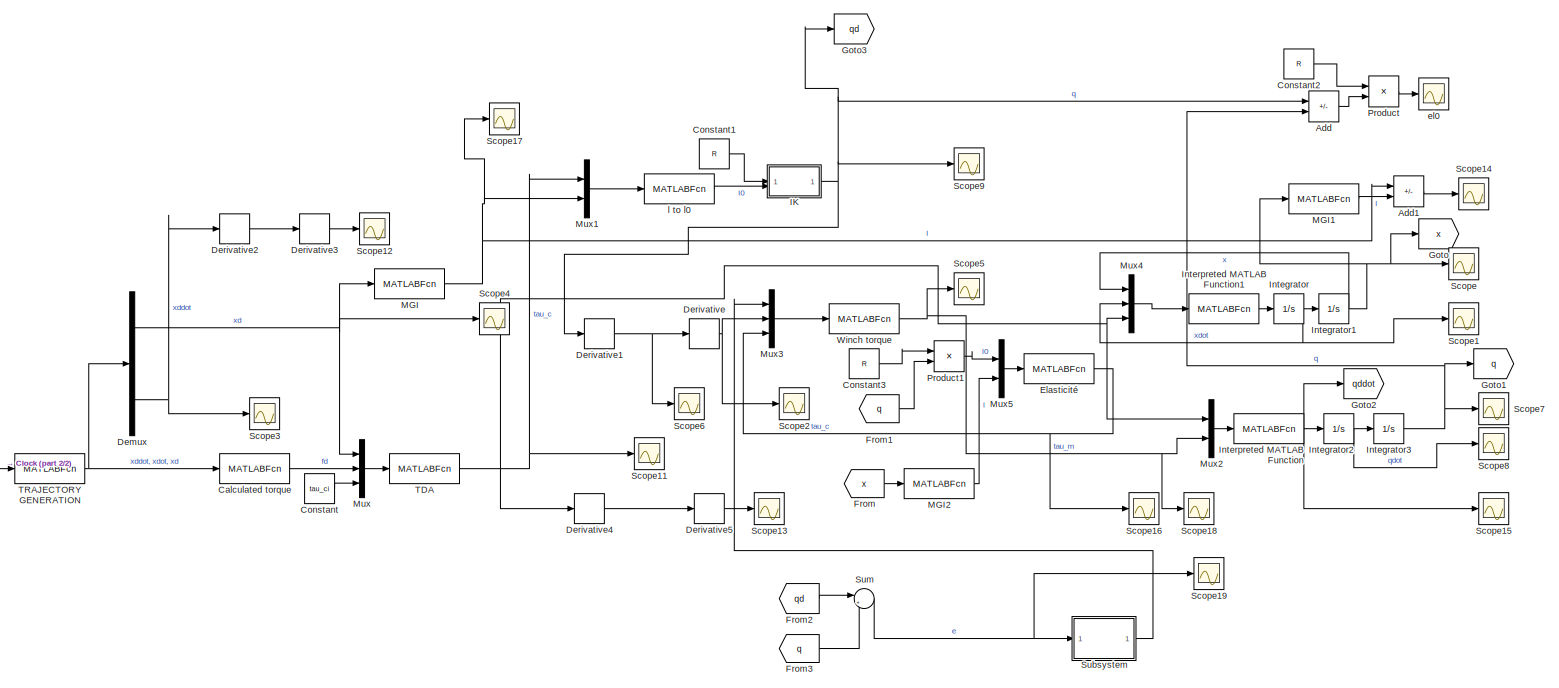
[diagram: root canvas - part 1/2, most of the canvas]
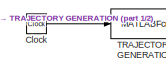
[diagram: root canvas - part 2/2, bottom left region]
MODEL slx_695d1d3f69a7
KIND model
CONFIG AbsTol = auto
CONFIG EnableMultiTasking = off
CONFIG FixedStep = 0.001
CONFIG MaxStep = auto
CONFIG MinStep = auto
CONFIG RelTol = 1e-3
CONFIG SampleTimeConstraint = Unconstrained
CONFIG SolverName = FixedStepAuto
CONFIG StartTime = 0.0
CONFIG StopTime = 10
BLOCK [Sum] Add
  IconShape = rectangular
  Inputs = +-
BLOCK [Sum] Add1
  IconShape = rectangular
  Inputs = +-
BLOCK [MATLABFcn] Calculated torque
  MATLABFcn = calculated_torque
  Output1D = off
BLOCK [Clock] Clock
BLOCK [Constant] Constant
  Value = tau_ci
BLOCK [Constant] Constant1
  Value = R
BLOCK [Constant] Constant2
  Value = R
BLOCK [Constant] Constant3
  Value = R
BLOCK [Demux] Demux
  Outputs = 3
BLOCK [Derivative] Derivative
BLOCK [Derivative] Derivative1
BLOCK [Derivative] Derivative2
BLOCK [Derivative] Derivative3
BLOCK [Derivative] Derivative4
BLOCK [Derivative] Derivative5
BLOCK [MATLABFcn] Elasticité
  MATLABFcn = Elasticity
  Output1D = off
  OutputDimensions = 8
  OutputSignalType = real
BLOCK [From] From
  GotoTag = x
BLOCK [From] From1
  GotoTag = q
BLOCK [From] From2
  GotoTag = qd
BLOCK [From] From3
  GotoTag = q
BLOCK [Goto] Goto
  GotoTag = x
BLOCK [Goto] Goto1
  GotoTag = q
BLOCK [Goto] Goto2
  GotoTag = qddot
BLOCK [Goto] Goto3
  GotoTag = qd
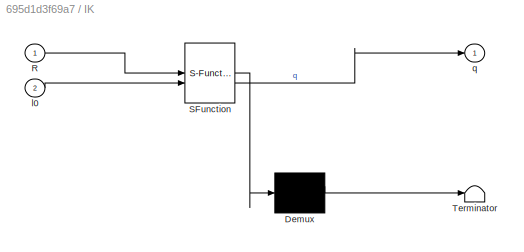
BLOCK [SubSystem] IK
  ErrorFcn = Stateflow.Translate.translate
  PermitHierarchicalResolution = ExplicitOnly
  SFBlockType = MATLAB Function
  TreatAsAtomicUnit = on
BLOCK [Demux] IK/ Demux 
  Outputs = 1
BLOCK [S-Function] IK/ SFunction 
  EnableBusSupport = on
  FunctionName = sf_sfun
  PortCounts = [2 2]
  SFcnIsStateOwnerBlock = off
  SFunctionDeploymentMode = off
  Tag = Stateflow S-Function 14
BLOCK [Terminator] IK/ Terminator 
BLOCK [Inport] IK/R
BLOCK [Inport] IK/l0
  Port = 2
BLOCK [Outport] IK/q
BLOCK [Integrator] Integrator
  InitialCondition = zeros(6,1)
BLOCK [Integrator] Integrator1
  InitialCondition = Xi
BLOCK [Integrator] Integrator2
  InitialCondition = zeros(8,1)
BLOCK [Integrator] Integrator3
  InitialCondition = qi
BLOCK [MATLABFcn] Interpreted MATLAB Function
  MATLABFcn = dynM_Winch
  Output1D = off
  OutputDimensions = 8
BLOCK [MATLABFcn] Interpreted MATLAB Function1
  MATLABFcn = DynModel
  Output1D = off
BLOCK [MATLABFcn] MGI
  MATLABFcn = MGI_Fconstrained
BLOCK [MATLABFcn] MGI1
  MATLABFcn = MGI_Fconstrained
BLOCK [MATLABFcn] MGI2
  MATLABFcn = MGI_Fconstrained
BLOCK [Mux] Mux
  DisplayOption = bar
  Inputs = 3
BLOCK [Mux] Mux1
  DisplayOption = bar
  Inputs = 2
BLOCK [Mux] Mux2
  DisplayOption = bar
  Inputs = 2
BLOCK [Mux] Mux3
  DisplayOption = bar
  Inputs = 3
BLOCK [Mux] Mux4
  DisplayOption = bar
  Inputs = 3
BLOCK [Mux] Mux5
  DisplayOption = bar
  Inputs = 2
BLOCK [Product] Product
  Multiplication = Matrix(*)
BLOCK [Product] Product1
  Multiplication = Matrix(*)
BLOCK [Scope] Scope
  Floating = off
  NumInputPorts = 1
  ScopeSpecificationString = Simulink.scopes.TimeScopeBlockCfg('CurrentConfiguration', extmgr.ConfigurationSet(extmgr.Configuration('Core','General UI',true),extmgr.Configuration('Core','Source UI',true),extmgr.Configuration('Sources','WiredSimulink',true,'DataLoggingVariableName','ScopeData5'),extmgr.Configuration('Visuals','Time Domain',true,'SerializedDisplays',{struct('MinYLimReal','-0.275','MaxYLimReal','2.475','YLabelRe...<+1575ch>
BLOCK [Scope] Scope1
  Floating = off
  NumInputPorts = 1
  ScopeSpecificationString = Simulink.scopes.TimeScopeBlockCfg('CurrentConfiguration', extmgr.ConfigurationSet(extmgr.Configuration('Core','General UI',true),extmgr.Configuration('Core','Source UI',true),extmgr.Configuration('Sources','WiredSimulink',true,'DataLoggingVariableName','ScopeData6'),extmgr.Configuration('Visuals','Time Domain',true,'SerializedDisplays',{struct('MinYLimReal','-138.7346','MaxYLimReal','89.27428','YL...<+1504ch>
BLOCK [Scope] Scope11
  Floating = off
  NumInputPorts = 1
  ScopeSpecificationString = Simulink.scopes.TimeScopeBlockCfg('CurrentConfiguration', extmgr.ConfigurationSet(extmgr.Configuration('Core','General UI',true,'FigureColor',[1 1 1]),extmgr.Configuration('Core','Source UI',true),extmgr.Configuration('Sources','WiredSimulink',true,'DataLoggingVariableName','ScopeData1'),extmgr.Configuration('Visuals','Time Domain',true,'SerializedDisplays',{struct('MinYLimReal','-471.21834','MaxY...<+1505ch>
BLOCK [Scope] Scope12
  Floating = off
  NumInputPorts = 1
  ScopeSpecificationString = Simulink.scopes.TimeScopeBlockCfg('CurrentConfiguration', extmgr.ConfigurationSet(extmgr.Configuration('Core','General UI',true),extmgr.Configuration('Core','Source UI',true),extmgr.Configuration('Sources','WiredSimulink',true,'DataLoggingVariableName','ScopeData2'),extmgr.Configuration('Visuals','Time Domain',true,'SerializedDisplays',{struct('MinYLimReal','-0.02382','MaxYLimReal','0.03007','YLab...<+1538ch>
BLOCK [Scope] Scope13
  Floating = off
  NumInputPorts = 1
  ScopeSpecificationString = Simulink.scopes.TimeScopeBlockCfg('CurrentConfiguration', extmgr.ConfigurationSet(extmgr.Configuration('Core','General UI',true),extmgr.Configuration('Core','Source UI',true),extmgr.Configuration('Sources','WiredSimulink',true,'DataLoggingVariableName','ScopeData3'),extmgr.Configuration('Visuals','Time Domain',true,'SerializedDisplays',{struct('MinYLimReal','-11528.86641','MaxYLimReal','20866.8399...<+1600ch>
BLOCK [Scope] Scope14
  Floating = off
  NumInputPorts = 1
  ScopeSpecificationString = Simulink.scopes.TimeScopeBlockCfg('CurrentConfiguration', extmgr.ConfigurationSet(extmgr.Configuration('Core','General UI',true),extmgr.Configuration('Core','Source UI',true),extmgr.Configuration('Sources','WiredSimulink',true,'DataLoggingVariableName','ScopeData4'),extmgr.Configuration('Visuals','Time Domain',true,'SerializedDisplays',{struct('MinYLimReal','-0.69404','MaxYLimReal','0.62303','YLab...<+1552ch>
BLOCK [Scope] Scope15
  Floating = off
  NumInputPorts = 1
  ScopeSpecificationString = Simulink.scopes.TimeScopeBlockCfg('CurrentConfiguration', extmgr.ConfigurationSet(extmgr.Configuration('Core','General UI',true),extmgr.Configuration('Core','Source UI',true),extmgr.Configuration('Sources','WiredSimulink',true,'DataLoggingVariableName','ScopeData15'),extmgr.Configuration('Visuals','Time Domain',true,'SerializedDisplays',{struct('MinYLimReal','-1291.85067','MaxYLimReal','1097.08769...<+1752ch>
BLOCK [Scope] Scope16
  Floating = off
  NumInputPorts = 1
  ScopeSpecificationString = Simulink.scopes.TimeScopeBlockCfg('CurrentConfiguration', extmgr.ConfigurationSet(extmgr.Configuration('Core','General UI',true),extmgr.Configuration('Core','Source UI',true),extmgr.Configuration('Sources','WiredSimulink',true,'DataLoggingVariableName','ScopeData1'),extmgr.Configuration('Visuals','Time Domain',true,'SerializedDisplays',{struct('MinYLimReal','28.74208','MaxYLimReal','216.79369','YL...<+1567ch>
BLOCK [Scope] Scope17
  Floating = off
  NumInputPorts = 1
  ScopeSpecificationString = Simulink.scopes.TimeScopeBlockCfg('CurrentConfiguration', extmgr.ConfigurationSet(extmgr.Configuration('Core','General UI',true),extmgr.Configuration('Core','Source UI',true),extmgr.Configuration('Sources','WiredSimulink',true,'DataLoggingVariableName','ScopeData2'),extmgr.Configuration('Visuals','Time Domain',true,'SerializedDisplays',{struct('MinYLimReal','4.1011','MaxYLimReal','4.48238','YLabel...<+1480ch>
BLOCK [Scope] Scope18
  Floating = off
  NumInputPorts = 1
  ScopeSpecificationString = Simulink.scopes.TimeScopeBlockCfg('CurrentConfiguration', extmgr.ConfigurationSet(extmgr.Configuration('Core','General UI',true),extmgr.Configuration('Core','Source UI',true),extmgr.Configuration('Sources','WiredSimulink',true,'DataLoggingVariableName','ScopeData3'),extmgr.Configuration('Visuals','Time Domain',true,'SerializedDisplays',{struct('MinYLimReal','0.11848','MaxYLimReal','0.53409','YLabe...<+1547ch>
BLOCK [Scope] Scope19
  Floating = off
  NumInputPorts = 1
  ScopeSpecificationString = Simulink.scopes.TimeScopeBlockCfg('CurrentConfiguration', extmgr.ConfigurationSet(extmgr.Configuration('Core','General UI',true),extmgr.Configuration('Core','Source UI',true),extmgr.Configuration('Sources','WiredSimulink',true,'DataLoggingVariableName','ScopeData4'),extmgr.Configuration('Visuals','Time Domain',true,'SerializedDisplays',{struct('MinYLimReal','-77608.57274','MaxYLimReal','64056.7117...<+1639ch>
BLOCK [Scope] Scope2
  Floating = off
  NumInputPorts = 1
  ScopeSpecificationString = Simulink.scopes.TimeScopeBlockCfg('CurrentConfiguration', extmgr.ConfigurationSet(extmgr.Configuration('Core','General UI',true),extmgr.Configuration('Core','Source UI',true),extmgr.Configuration('Sources','WiredSimulink',true,'DataLoggingVariableName','ScopeData8'),extmgr.Configuration('Visuals','Time Domain',true,'SerializedDisplays',{struct('MinYLimReal','-0.00338','MaxYLimReal','0.00257','YLab...<+1455ch>
BLOCK [Scope] Scope3
  Floating = off
  NumInputPorts = 1
  ScopeSpecificationString = Simulink.scopes.TimeScopeBlockCfg('CurrentConfiguration', extmgr.ConfigurationSet(extmgr.Configuration('Core','General UI',true),extmgr.Configuration('Core','Source UI',true),extmgr.Configuration('Sources','WiredSimulink',true,'DataLoggingVariableName','ScopeData9'),extmgr.Configuration('Visuals','Time Domain',true,'SerializedDisplays',{struct('MinYLimReal','-0.082','MaxYLimReal','0.082','YLabelRe...<+1486ch>
BLOCK [Scope] Scope4
  Floating = off
  NumInputPorts = 1
  ScopeSpecificationString = Simulink.scopes.TimeScopeBlockCfg('CurrentConfiguration', extmgr.ConfigurationSet(extmgr.Configuration('Core','General UI',true),extmgr.Configuration('Core','Source UI',true),extmgr.Configuration('Sources','WiredSimulink',true,'DataLoggingVariableName','ScopeData10'),extmgr.Configuration('Visuals','Time Domain',true,'SerializedDisplays',{struct('MinYLimReal','-0.3125','MaxYLimReal','2.8125','YLabe...<+1475ch>
BLOCK [Scope] Scope5
  Floating = off
  NumInputPorts = 1
  ScopeSpecificationString = Simulink.scopes.TimeScopeBlockCfg('CurrentConfiguration', extmgr.ConfigurationSet(extmgr.Configuration('Core','General UI',true),extmgr.Configuration('Core','Source UI',true),extmgr.Configuration('Sources','WiredSimulink',true,'DataLoggingVariableName','ScopeData11'),extmgr.Configuration('Visuals','Time Domain',true,'SerializedDisplays',{struct('MinYLimReal','0.11848','MaxYLimReal','0.53409','YLab...<+1548ch>
BLOCK [Scope] Scope6
  Floating = off
  NumInputPorts = 1
  ScopeSpecificationString = Simulink.scopes.TimeScopeBlockCfg('CurrentConfiguration', extmgr.ConfigurationSet(extmgr.Configuration('Core','General UI',true),extmgr.Configuration('Core','Source UI',true),extmgr.Configuration('Sources','WiredSimulink',true,'DataLoggingVariableName','ScopeData12'),extmgr.Configuration('Visuals','Time Domain',true,'SerializedDisplays',{struct('MinYLimReal','-15.80108','MaxYLimReal','6.36126','YL...<+1575ch>
BLOCK [Scope] Scope7
  Floating = off
  NumInputPorts = 1
  ScopeSpecificationString = Simulink.scopes.TimeScopeBlockCfg('CurrentConfiguration', extmgr.ConfigurationSet(extmgr.Configuration('Core','General UI',true),extmgr.Configuration('Core','Source UI',true),extmgr.Configuration('Sources','WiredSimulink',true,'DataLoggingVariableName','ScopeData13'),extmgr.Configuration('Visuals','Time Domain',true,'SerializedDisplays',{struct('MinYLimReal','1339.33893','MaxYLimReal','1378.689','...<+1507ch>
BLOCK [Scope] Scope8
  Floating = off
  NumInputPorts = 1
  ScopeSpecificationString = Simulink.scopes.TimeScopeBlockCfg('CurrentConfiguration', extmgr.ConfigurationSet(extmgr.Configuration('Core','General UI',true),extmgr.Configuration('Core','Source UI',true),extmgr.Configuration('Sources','WiredSimulink',true,'DataLoggingVariableName','ScopeData14'),extmgr.Configuration('Visuals','Time Domain',true,'SerializedDisplays',{struct('MinYLimReal','-113.76228','MaxYLimReal','12.64025','...<+1558ch>
BLOCK [Scope] Scope9
  Floating = off
  NumInputPorts = 1
  ScopeSpecificationString = Simulink.scopes.TimeScopeBlockCfg('CurrentConfiguration', extmgr.ConfigurationSet(extmgr.Configuration('Core','General UI',true),extmgr.Configuration('Core','Source UI',true),extmgr.Configuration('Sources','WiredSimulink',true),extmgr.Configuration('Visuals','Time Domain',true,'SerializedDisplays',{struct('MinYLimReal','1212.38623','MaxYLimReal','1495.35112','YLabelReal','','MinYLimMag','1212.3862...<+1469ch>
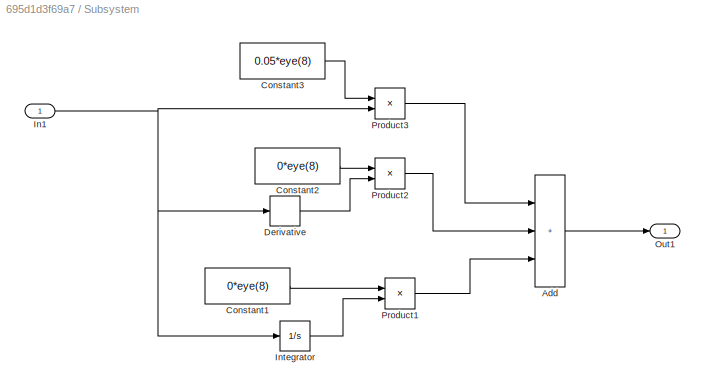
BLOCK [SubSystem] Subsystem
BLOCK [Sum] Subsystem/Add
  IconShape = rectangular
  Inputs = +++
BLOCK [Constant] Subsystem/Constant1
  Value = 0*eye(8)
BLOCK [Constant] Subsystem/Constant2
  Value = 0*eye(8)
BLOCK [Constant] Subsystem/Constant3
  Value = 0.05*eye(8)
BLOCK [Derivative] Subsystem/Derivative
BLOCK [Inport] Subsystem/In1
BLOCK [Integrator] Subsystem/Integrator
BLOCK [Outport] Subsystem/Out1
BLOCK [Product] Subsystem/Product1
  Multiplication = Matrix(*)
BLOCK [Product] Subsystem/Product2
  Multiplication = Matrix(*)
BLOCK [Product] Subsystem/Product3
  Multiplication = Matrix(*)
BLOCK [Sum] Sum
  Inputs = |+-
BLOCK [MATLABFcn] TDA
  MATLABFcn = TDA
  Output1D = off
  OutputDimensions = 8
BLOCK [MATLABFcn] TRAJECTORY GENERATION
  MATLABFcn = Trajectory_Generation
  Output1D = off
BLOCK [MATLABFcn] Winch torque
  MATLABFcn = Winch_torque
  Output1D = off
  OutputDimensions = 8
  OutputSignalType = real
BLOCK [Scope] el0
  Floating = off
  NumInputPorts = 1
  ScopeSpecificationString = Simulink.scopes.TimeScopeBlockCfg('CurrentConfiguration', extmgr.ConfigurationSet(extmgr.Configuration('Core','General UI',true),extmgr.Configuration('Core','Source UI',true),extmgr.Configuration('Sources','WiredSimulink',true,'DataLoggingVariableName','ScopeData7'),extmgr.Configuration('Visuals','Time Domain',true,'SerializedDisplays',{struct('MinYLimReal','-0.11582','MaxYLimReal','0.137','YLabel...<+1568ch>
BLOCK [MATLABFcn] l to l0
  MATLABFcn = l_to_l0
  Output1D = off
  OutputDimensions = 8
  OutputSignalType = real
LINE Add1:1 -> Scope14:1
LINE Add:1 -> Product:2
LINE Calculated torque:1 -> Mux:2
LINE Clock:1 -> TRAJECTORY GENERATION:1
LINE Constant1:1 -> IK:1
LINE Constant2:1 -> Product:1
LINE Constant3:1 -> Product1:1
LINE Constant:1 -> Mux:3
NET Demux:1 -> MGI:1, Mux:1, Scope4:1
NET Demux:3 -> Derivative2:1, Scope3:1
NET Derivative1:1 -> Derivative:1, Scope6:1
LINE Derivative2:1 -> Derivative3:1
LINE Derivative3:1 -> Scope12:1
LINE Derivative4:1 -> Derivative5:1
LINE Derivative5:1 -> Scope13:1
NET Derivative:1 -> Mux3:2, Scope2:1
NET Elasticité:1 -> Mux3:3, Scope16:1
LINE From1:1 -> Product1:2
LINE From2:1 -> Sum:1
LINE From3:1 -> Sum:2
LINE From:1 -> MGI2:1
NET IK:1 -> Add:1, Derivative1:1, Goto3:1, Scope9:1
NET Integrator1:1 -> Goto:1, MGI1:1, Mux4:1, Scope:1
NET Integrator2:1 -> Integrator3:1, Scope8:1
NET Integrator3:1 -> Add:2, Goto1:1, Scope7:1
NET Integrator:1 -> Integrator1:1, Mux4:2, Scope1:1
LINE Interpreted MATLAB Function1:1 -> Integrator:1
NET Interpreted MATLAB Function:1 -> Goto2:1, Integrator2:1, Scope15:1
LINE MGI1:1 -> Add1:2
LINE MGI2:1 -> Mux5:2
NET MGI:1 -> Add1:1, Mux1:2, Scope17:1
LINE Mux1:1 -> l to l0:1
LINE Mux2:1 -> Interpreted MATLAB Function:1
LINE Mux3:1 -> Winch torque:1
LINE Mux4:1 -> Interpreted MATLAB Function1:1
LINE Mux5:1 -> Elasticité:1
LINE Mux:1 -> TDA:1
LINE Product1:1 -> Mux5:1
LINE Product:1 -> el0:1
LINE Subsystem/Add:1 -> Subsystem/Out1:1
LINE Subsystem/Constant1:1 -> Subsystem/Product1:1
LINE Subsystem/Constant2:1 -> Subsystem/Product2:1
LINE Subsystem/Constant3:1 -> Subsystem/Product3:1
LINE Subsystem/Derivative:1 -> Subsystem/Product2:2
NET Subsystem/In1:1 -> Subsystem/Derivative:1, Subsystem/Integrator:1, Subsystem/Product3:2
LINE Subsystem/Integrator:1 -> Subsystem/Product1:2
LINE Subsystem/Product1:1 -> Subsystem/Add:3
LINE Subsystem/Product2:1 -> Subsystem/Add:2
LINE Subsystem/Product3:1 -> Subsystem/Add:1
LINE Subsystem:1 -> Mux3:1
NET Sum:1 -> Scope19:1, Subsystem:1
NET TDA:1 -> Derivative4:1, Mux1:1, Mux2:1, Mux4:3, Scope11:1
NET TRAJECTORY GENERATION:1 -> Calculated torque:1, Demux:1
NET Winch torque:1 -> Mux2:2, Scope18:1, Scope5:1
LINE l to l0:1 -> IK:2
note: NET lines group one-source signal fan-out (src -> all destinations, sorted); 1:1 wires keep LINE
CHART IK states=1 transitions=1
  STATE_LABEL 'eML_blk_kernel()'
  STATE_LABEL 'SCRIPT:\nfunction q = fcn(R, l0)\n\nq = R\\l0;\n    for i = 1:8\n        truncateSignalq(q(i));\n    end\n'
CHART  states=0 transitions=0
